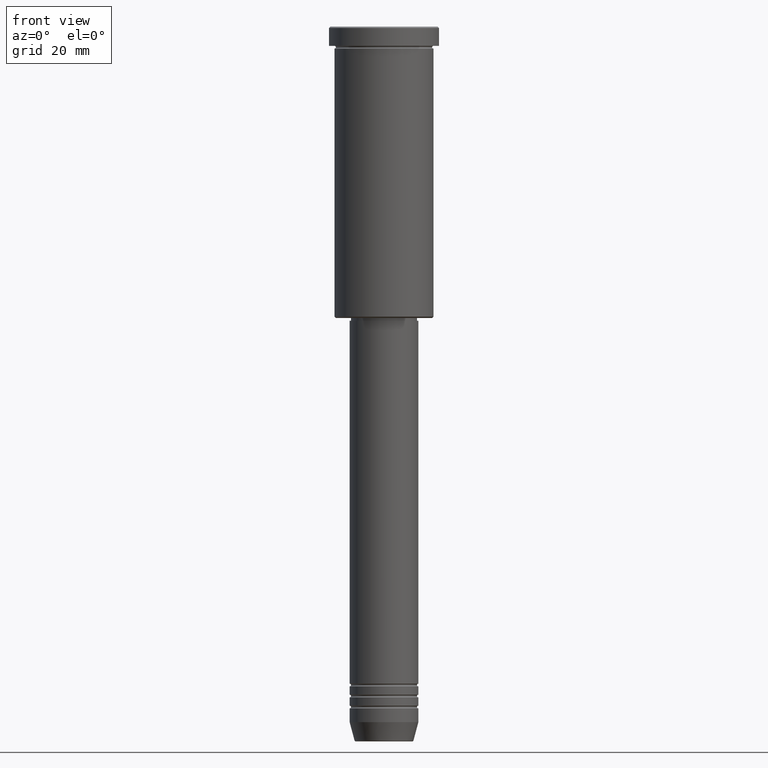
[diagram: clean part render]
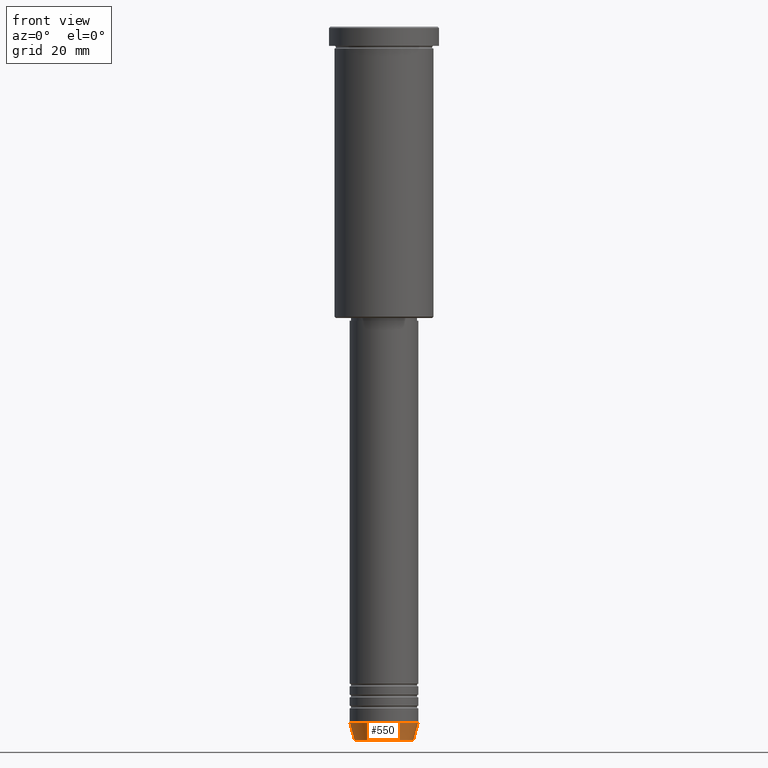
[diagram: same view with one face highlighted and labeled with its STEP entity id]
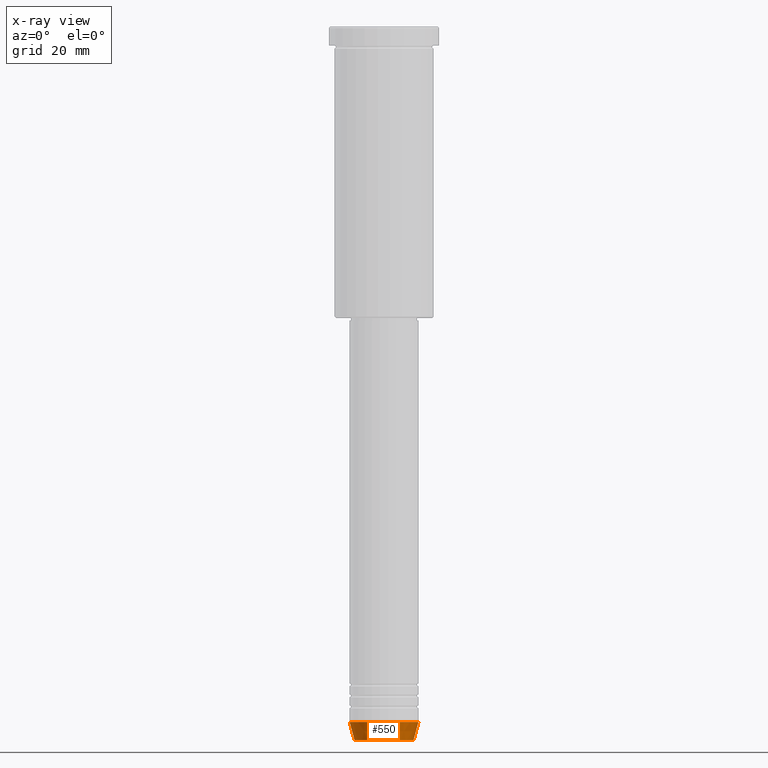
[diagram: x-ray of the same camera — body ghosted, the highlighted face saturated]
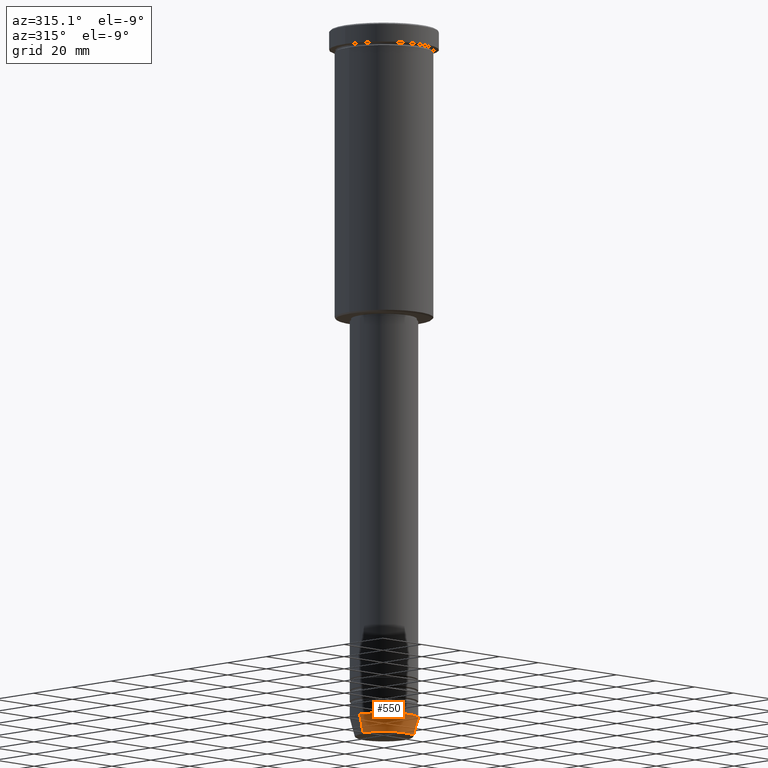
[diagram: same view with one face highlighted and labeled with its STEP entity id]
A machine part, front view. The second image highlights one B-rep face of the part: STEP entity #550.
The next image is the same camera in x-ray: the body ghosted, the highlighted face saturated — about 0% of this face is hidden behind the body in this view.
A second angle (auxiliary view) of the same face is appended — the face is thin or edge-on in the first view.
In plain terms, the highlighted conical surface has half-angle 15 deg.
Its self-contained STEP definition (entity closure, byte-faithful):
#6 = ORIENTED_EDGE ( 'NONE', *, *, #712, .T. ) ;
#28 = EDGE_CURVE ( 'NONE', #857, #431, #1175, .T. ) ;
#34 = VECTOR ( 'NONE', #1108, 1000.000000000000000 ) ;
#65 = FACE_OUTER_BOUND ( 'NONE', #96, .T. ) ;
#96 = EDGE_LOOP ( 'NONE', ( #785, #769, #6, #607 ) ) ;
#134 = VERTEX_POINT ( 'NONE', #984 ) ;
#136 = CARTESIAN_POINT ( 'NONE',  ( 12.50000000000000000, 0.000000000000000000, -253.0000000000000000 ) ) ;
#214 = DIRECTION ( 'NONE',  ( -0.000000000000000000, -0.000000000000000000, 1.000000000000000000 ) ) ;
#223 = DIRECTION ( 'NONE',  ( 1.000000000000000000, 0.000000000000000000, 0.000000000000000000 ) ) ;
#276 = DIRECTION ( 'NONE',  ( -0.000000000000000000, -0.000000000000000000, 1.000000000000000000 ) ) ;
#286 = CIRCLE ( 'NONE', #947, 10.72365507213719127 ) ;
#304 = CONICAL_SURFACE ( 'NONE', #1179, 12.50000000000000000, 0.2617993877991500740 ) ;
#366 = CARTESIAN_POINT ( 'NONE',  ( 0.000000000000000000, 0.000000000000000000, -259.6294095225512706 ) ) ;
#399 = VECTOR ( 'NONE', #893, 1000.000000000000000 ) ;
#406 = DIRECTION ( 'NONE',  ( -0.000000000000000000, -0.000000000000000000, 1.000000000000000000 ) ) ;
#431 = VERTEX_POINT ( 'NONE', #136 ) ;
#514 = CARTESIAN_POINT ( 'NONE',  ( 10.72365507213719127, 0.000000000000000000, -259.6294095225512706 ) ) ;
#550 = ADVANCED_FACE ( 'NONE', ( #65 ), #304, .T. ) ;
#558 = AXIS2_PLACEMENT_3D ( 'NONE', #1141, #214, #223 ) ;
#570 = LINE ( 'NONE', #648, #34 ) ;
#607 = ORIENTED_EDGE ( 'NONE', *, *, #28, .F. ) ;
#648 = CARTESIAN_POINT ( 'NONE',  ( 12.50000000000000000, 0.000000000000000000, -253.0000000000000000 ) ) ;
#670 = DIRECTION ( 'NONE',  ( 1.000000000000000000, 0.000000000000000000, 0.000000000000000000 ) ) ;
#712 = EDGE_CURVE ( 'NONE', #1073, #431, #570, .T. ) ;
#769 = ORIENTED_EDGE ( 'NONE', *, *, #1067, .T. ) ;
#785 = ORIENTED_EDGE ( 'NONE', *, *, #1053, .F. ) ;
#791 = CARTESIAN_POINT ( 'NONE',  ( -12.50000000000000000, 1.530808498934191521E-15, -253.0000000000000000 ) ) ;
#857 = VERTEX_POINT ( 'NONE', #791 ) ;
#887 = CARTESIAN_POINT ( 'NONE',  ( 0.000000000000000000, 0.000000000000000000, -253.0000000000000000 ) ) ;
#893 = DIRECTION ( 'NONE',  ( -0.2588190451025213501, 3.169619151431772337E-17, 0.9659258262890680902 ) ) ;
#947 = AXIS2_PLACEMENT_3D ( 'NONE', #366, #276, #1181 ) ;
#984 = CARTESIAN_POINT ( 'NONE',  ( -10.72365507213719127, 1.422038742429750516E-15, -259.6294095225512706 ) ) ;
#989 = LINE ( 'NONE', #1169, #399 ) ;
#1053 = EDGE_CURVE ( 'NONE', #134, #857, #989, .T. ) ;
#1067 = EDGE_CURVE ( 'NONE', #134, #1073, #286, .T. ) ;
#1073 = VERTEX_POINT ( 'NONE', #514 ) ;
#1108 = DIRECTION ( 'NONE',  ( 0.2588190451025213501, 0.000000000000000000, 0.9659258262890680902 ) ) ;
#1141 = CARTESIAN_POINT ( 'NONE',  ( 0.000000000000000000, 0.000000000000000000, -253.0000000000000000 ) ) ;
#1169 = CARTESIAN_POINT ( 'NONE',  ( -12.50000000000000000, 1.530808498934191521E-15, -253.0000000000000000 ) ) ;
#1175 = CIRCLE ( 'NONE', #558, 12.50000000000000000 ) ;
#1179 = AXIS2_PLACEMENT_3D ( 'NONE', #887, #406, #670 ) ;
#1181 = DIRECTION ( 'NONE',  ( 1.000000000000000000, 0.000000000000000000, 0.000000000000000000 ) ) ;